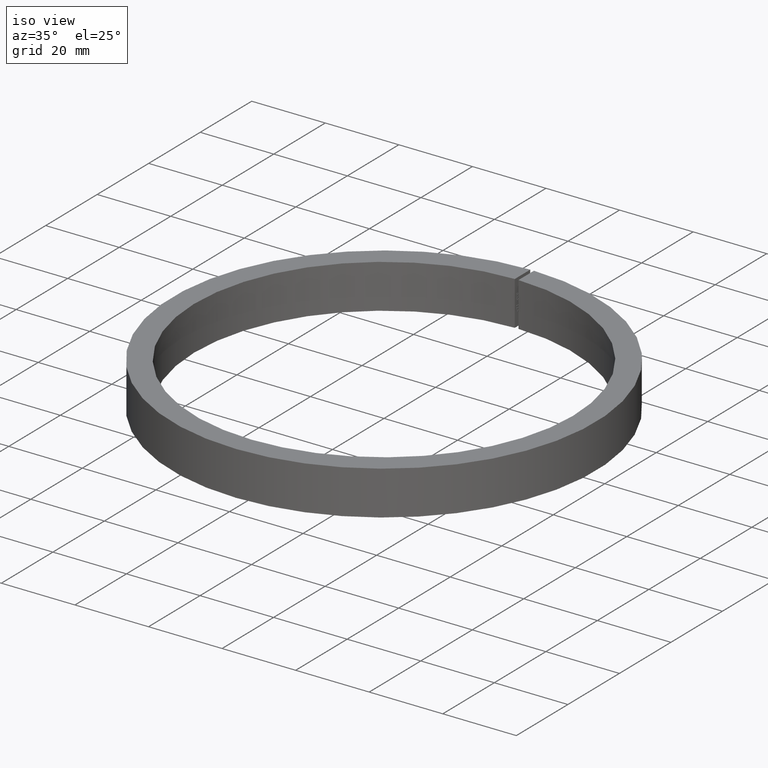
[diagram: clean part render]
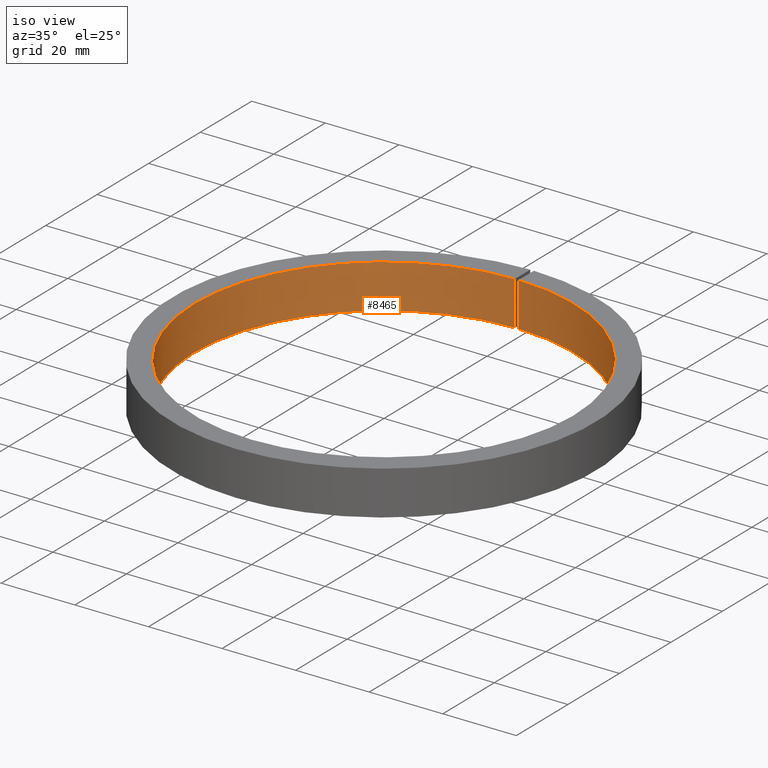
[diagram: same view with one face highlighted and labeled with its STEP entity id]
A machine part, iso view. The second image highlights one B-rep face of the part: STEP entity #8465.
In plain terms, the highlighted cylindrical surface (partial cylindrical patch) has radius 51.5 mm, axis along (-0, -0, -1).
Its self-contained STEP definition (entity closure, byte-faithful):
#412 = CARTESIAN_POINT ( 'NONE',  ( -0.5000000000000000000, 51.49757275833493300, -5.999999999999998200 ) ) ;
#517 = EDGE_CURVE ( 'NONE', #4810, #4510, #1773, .T. ) ;
#1046 = LINE ( 'NONE', #5038, #9645 ) ;
#1176 = FACE_OUTER_BOUND ( 'NONE', #2291, .T. ) ;
#1672 = ORIENTED_EDGE ( 'NONE', *, *, #8695, .T. ) ;
#1773 = LINE ( 'NONE', #9468, #8655 ) ;
#2086 = CYLINDRICAL_SURFACE ( 'NONE', #8724, 51.50000000000000700 ) ;
#2146 = CARTESIAN_POINT ( 'NONE',  ( 0.0000000000000000000, 0.0000000000000000000, -5.999999999999998200 ) ) ;
#2291 = EDGE_LOOP ( 'NONE', ( #7292, #7100, #7444, #1672 ) ) ;
#2372 = CIRCLE ( 'NONE', #6402, 51.50000000000000700 ) ;
#3445 = DIRECTION ( 'NONE',  ( -0.0000000000000000000, -0.0000000000000000000, -1.000000000000000000 ) ) ;
#3582 = VERTEX_POINT ( 'NONE', #9303 ) ;
#4510 = VERTEX_POINT ( 'NONE', #7416 ) ;
#4609 = DIRECTION ( 'NONE',  ( -0.0000000000000000000, -0.0000000000000000000, 1.000000000000000000 ) ) ;
#4810 = VERTEX_POINT ( 'NONE', #9497 ) ;
#4959 = DIRECTION ( 'NONE',  ( -0.0000000000000000000, -0.0000000000000000000, 1.000000000000000000 ) ) ;
#5038 = CARTESIAN_POINT ( 'NONE',  ( -0.5000000000000000000, 51.49757275833493300, -5.999999999999998200 ) ) ;
#5410 = DIRECTION ( 'NONE',  ( -1.000000000000000000, 0.0000000000000000000, 0.0000000000000000000 ) ) ;
#5895 = DIRECTION ( 'NONE',  ( -1.000000000000000000, 0.0000000000000000000, 0.0000000000000000000 ) ) ;
#6236 = DIRECTION ( 'NONE',  ( -0.0000000000000000000, -0.0000000000000000000, -1.000000000000000000 ) ) ;
#6247 = DIRECTION ( 'NONE',  ( -0.0000000000000000000, -0.0000000000000000000, -1.000000000000000000 ) ) ;
#6402 = AXIS2_PLACEMENT_3D ( 'NONE', #7633, #3445, #5895 ) ;
#6601 = VERTEX_POINT ( 'NONE', #412 ) ;
#6999 = EDGE_CURVE ( 'NONE', #4510, #3582, #2372, .T. ) ;
#7100 = ORIENTED_EDGE ( 'NONE', *, *, #517, .F. ) ;
#7292 = ORIENTED_EDGE ( 'NONE', *, *, #6999, .F. ) ;
#7416 = CARTESIAN_POINT ( 'NONE',  ( 0.5000000000000000000, 51.49757275833493300, 6.000000000000005300 ) ) ;
#7444 = ORIENTED_EDGE ( 'NONE', *, *, #10554, .T. ) ;
#7633 = CARTESIAN_POINT ( 'NONE',  ( 0.0000000000000000000, 0.0000000000000000000, 6.000000000000005300 ) ) ;
#8238 = DIRECTION ( 'NONE',  ( -1.000000000000000000, 0.0000000000000000000, 0.0000000000000000000 ) ) ;
#8465 = ADVANCED_FACE ( 'NONE', ( #1176 ), #2086, .F. ) ;
#8655 = VECTOR ( 'NONE', #4609, 1000.000000000000000 ) ;
#8695 = EDGE_CURVE ( 'NONE', #6601, #3582, #1046, .T. ) ;
#8724 = AXIS2_PLACEMENT_3D ( 'NONE', #9561, #6236, #5410 ) ;
#9303 = CARTESIAN_POINT ( 'NONE',  ( -0.5000000000000000000, 51.49757275833493300, 6.000000000000005300 ) ) ;
#9354 = CIRCLE ( 'NONE', #9569, 51.50000000000000700 ) ;
#9468 = CARTESIAN_POINT ( 'NONE',  ( 0.5000000000000000000, 51.49757275833493300, -5.999999999999998200 ) ) ;
#9497 = CARTESIAN_POINT ( 'NONE',  ( 0.5000000000000000000, 51.49757275833493300, -5.999999999999998200 ) ) ;
#9561 = CARTESIAN_POINT ( 'NONE',  ( 0.0000000000000000000, 0.0000000000000000000, 0.0000000000000000000 ) ) ;
#9569 = AXIS2_PLACEMENT_3D ( 'NONE', #2146, #6247, #8238 ) ;
#9645 = VECTOR ( 'NONE', #4959, 1000.000000000000000 ) ;
#10554 = EDGE_CURVE ( 'NONE', #4810, #6601, #9354, .T. ) ;